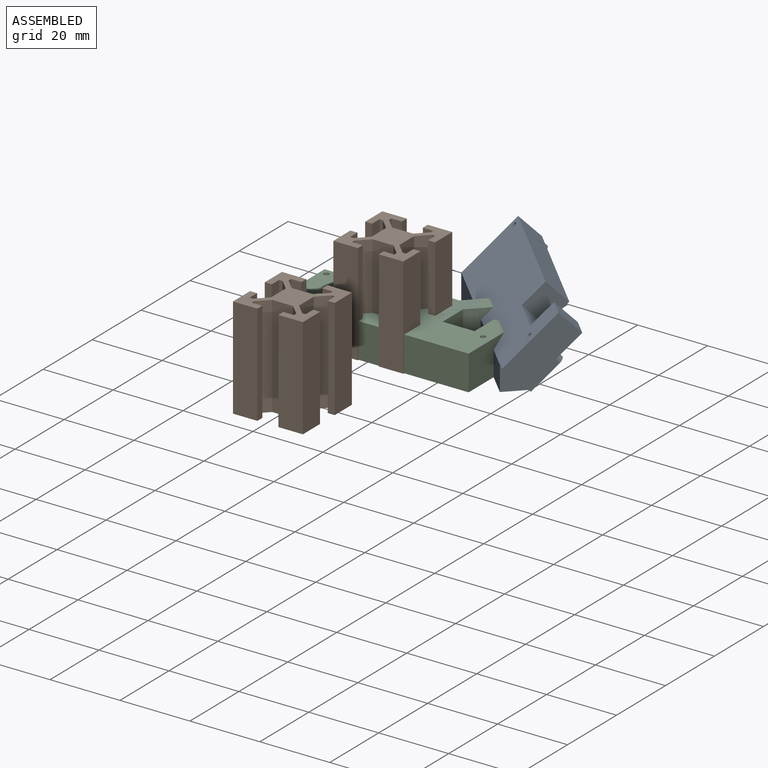
[diagram: assembled view]
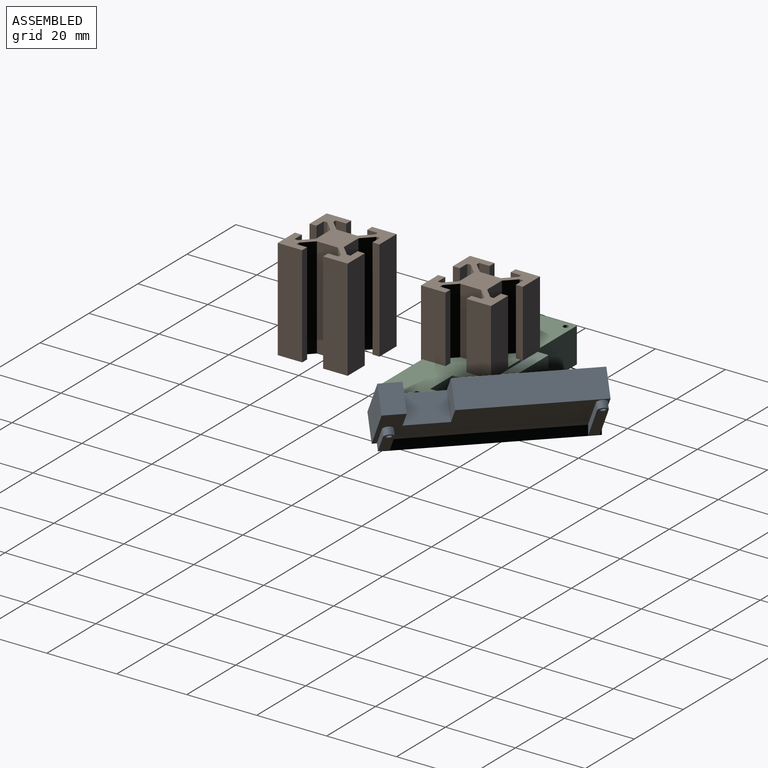
[diagram: assembled view, second angle]
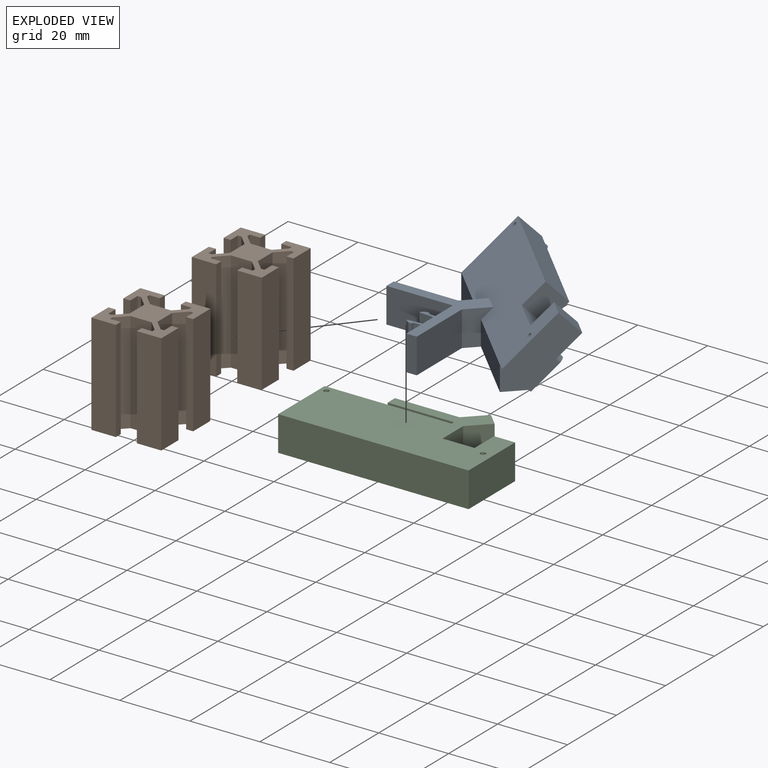
[diagram: exploded view]
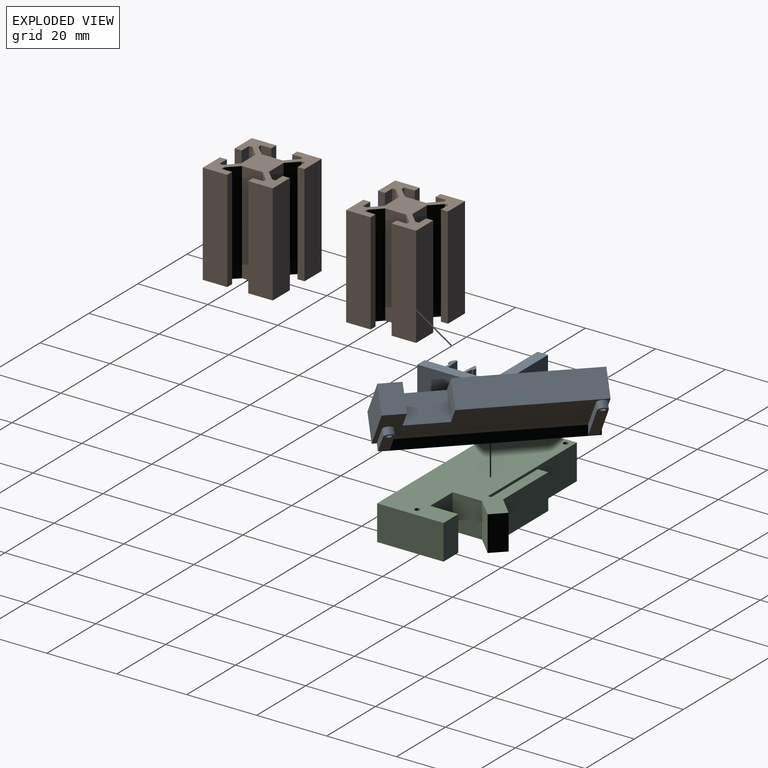
[diagram: exploded view, second angle]
FCSTD DOCUMENT  (FreeCAD 2022.111R28429 (Git))
Label: voroncameramount
License: All rights reserved
LicenseURL: http://en.wikipedia.org/wiki/All_rights_reserved
objects: PartDesign::Body×11, Sketcher::SketchObject×8, PartDesign::Pad×5, App::Part×4, PartDesign::Pocket×3, Image::ImagePlane×1, PartDesign::Mirrored×1, Part::Fuse×1, App::Link×1, PartDesign::FeatureBase×1
note: 49 computed .brp shape members not serialized (recipe doc carries the construction recipe); baked Part::Feature solids carry a one-line shape summary decoded from their .brp

FEATURE [Image::ImagePlane] ImagePlane
  Placement = pos=(0,-0.1,0) rot=(0,0,1;0.008727rad)
  TreeRank = 0
  XSize = 52.3255
  YSize = 19.5
FEATURE [Sketcher::SketchObject] Sketch
  FullyConstrained = true
  MapMode = 5
  Support = -> [XY_Plane001]
  TreeRank = 0
  sketch-geometry (11):
    g0: LineSegment StartX=-26.02 StartY=-9.66 StartZ=0 EndX=25.98 EndY=-9.66 EndZ=0
    g1: LineSegment StartX=25.98 StartY=-9.66 StartZ=0 EndX=25.98 EndY=9.34 EndZ=0
    g2: LineSegment [constr] StartX=25.98 StartY=9.34 StartZ=0 EndX=-26.02 EndY=9.34 EndZ=0
    g3: LineSegment StartX=-26.02 StartY=9.34 StartZ=0 EndX=-26.02 EndY=-9.66 EndZ=0
    g4: LineSegment StartX=-26.02 StartY=9.34 StartZ=0 EndX=8.48 EndY=9.34 EndZ=0
    g5: LineSegment StartX=8.48 StartY=9.34 StartZ=0 EndX=8.48 EndY=1.34 EndZ=0
    g6: LineSegment StartX=8.48 StartY=1.34 StartZ=0 EndX=19.98 EndY=1.34 EndZ=0
    g7: LineSegment StartX=19.98 StartY=1.34 StartZ=0 EndX=19.98 EndY=9.34 EndZ=0
    g8: LineSegment StartX=19.98 StartY=9.34 StartZ=0 EndX=25.98 EndY=9.34 EndZ=0
    g9: Circle CenterX=-24.19 CenterY=7.43 CenterZ=0 NormalX=0 NormalY=0 NormalZ=1 AngleXU=0 Radius=0.75
    g10: Circle CenterX=23.34 CenterY=0 CenterZ=0 NormalX=0 NormalY=0 NormalZ=1 AngleXU=0 Radius=0.75
  constraints (32):
    c: Coincident(g0,g1)
    c: Coincident(g1,g2)
    c: Coincident(g2,g3)
    c: Coincident(g3,g0)
    c: Horizontal(g0)
    c: Horizontal(g2)
    c: Vertical(g1)
    c: Vertical(g3)
    c: DistanceX(g2,g1) = 52
    c: DistanceY(g0,g2) = 19
    c: DistanceY(g-1,g2) = 9.34
    c: DistanceX(g2,g-1) = 26.02
    c: Coincident(g3,g4)
    c: PointOnObject(g4,g2)
    c: Coincident(g4,g5)
    c: Vertical(g5)
    c: Coincident(g5,g6)
    c: Horizontal(g6)
    c: Coincident(g6,g7)
    c: PointOnObject(g7,g2)
    c: Vertical(g7)
    c: Coincident(g8,g7)
    c: Coincident(g8,g1)
    c: DistanceX(g5,g6) = 11.5
    c: DistanceY(g5,g4) = 8
    c: DistanceX(g7,g1) = 6
    c: PointOnObject(g10,g-1)
    c: Equal(g9,g10)
    c: Diameter(g9) = 1.5
    c: DistanceX(g3,g9) = 1.83
    c: DistanceY(g9,g3) = 1.91
    c: DistanceX(g10,g0) = 2.64
FEATURE [PartDesign::Body] Body  label="sketckonlybody"
  AutoGroupSolids = false
  ExportMode = 0
  Group = -> [Sketch]
  Origin = -> Origin001
  TreeRank = 0
  _ExportChildren = -> [Sketch]
  _GroupVersion = 1
FEATURE [Sketcher::SketchObject] Sketch003
  FullyConstrained = false
  MapMode = 5
  TreeRank = 0
  sketch-geometry (26):
    g0: LineSegment [constr] StartX=10 StartY=-10 StartZ=0 EndX=-10 EndY=-10 EndZ=0
    g1: LineSegment StartX=-10 StartY=3 StartZ=0 EndX=-10 EndY=10 EndZ=0
    g2: LineSegment StartX=-10 StartY=10 StartZ=0 EndX=-3 EndY=10 EndZ=0
    g3: LineSegment StartX=-3 StartY=10 StartZ=0 EndX=-3 EndY=8 EndZ=0
    g4: LineSegment StartX=-3 StartY=8 StartZ=0 EndX=-6 EndY=8 EndZ=0
    g5: LineSegment StartX=-10 StartY=3 StartZ=0 EndX=-8 EndY=3 EndZ=0
    g6: LineSegment StartX=-8 StartY=3 StartZ=0 EndX=-8 EndY=6 EndZ=0
    g7: LineSegment StartX=-6 StartY=8 StartZ=0 EndX=-6 EndY=7 EndZ=0
    g8: LineSegment StartX=-6 StartY=7 StartZ=0 EndX=-3 EndY=4 EndZ=0
    g9: LineSegment StartX=-8 StartY=6 StartZ=0 EndX=-7 EndY=6 EndZ=0
    g10: LineSegment StartX=-7 StartY=6 StartZ=0 EndX=-4 EndY=3 EndZ=0
    g11: LineSegment StartX=-4 StartY=3 StartZ=0 EndX=-4 EndY=0 EndZ=0
    g12: LineSegment StartX=-3 StartY=4 StartZ=0 EndX=3 EndY=4 EndZ=0
    g13: LineSegment StartX=3 StartY=4 StartZ=0 EndX=6 EndY=7 EndZ=0
    g14: LineSegment StartX=6 StartY=7 StartZ=0 EndX=6 EndY=8 EndZ=0
    g15: LineSegment StartX=6 StartY=8 StartZ=0 EndX=3 EndY=8 EndZ=0
    g16: LineSegment StartX=3 StartY=8 StartZ=0 EndX=3 EndY=10 EndZ=0
    g17: LineSegment StartX=3 StartY=10 StartZ=0 EndX=10 EndY=10 EndZ=0
    g18: LineSegment StartX=10 StartY=10 StartZ=0 EndX=10 EndY=3 EndZ=0
    g19: LineSegment StartX=10 StartY=3 StartZ=0 EndX=8 EndY=3 EndZ=0
    g20: LineSegment StartX=8 StartY=3 StartZ=0 EndX=8 EndY=6 EndZ=0
    g21: LineSegment StartX=8 StartY=6 StartZ=0 EndX=7 EndY=6 EndZ=0
    g22: LineSegment StartX=7 StartY=6 StartZ=0 EndX=4 EndY=3 EndZ=0
    g23: LineSegment StartX=4 StartY=3 StartZ=0 EndX=4 EndY=0 EndZ=0
    g24: LineSegment StartX=-4 StartY=0 StartZ=0 EndX=4 EndY=0 EndZ=0
    g25: LineSegment [constr] StartX=-3 StartY=10 StartZ=0 EndX=3 EndY=10 EndZ=0
  constraints (75):
    c: Symmetric(g0,g0,g-2)
    c: Coincident(g1,g2)
    c: Horizontal(g2)
    c: Coincident(g2,g3)
    c: Coincident(g3,g4)
    c: Horizontal(g4)
    c: Coincident(g1,g5)
    c: Coincident(g5,g6)
    c: Coincident(g4,g7)
    c: Coincident(g7,g8)
    c: Coincident(g6,g9)
    c: Coincident(g9,g10)
    c: Coincident(g10,g11)
    c: PointOnObject(g11,g-1)
    c: Vertical(g11)
    c: Horizontal(g5)
    c: Vertical(g6)
    c: Horizontal(g9)
    c: Vertical(g7)
    c: Vertical(g3)
    c: Coincident(g8,g12)
    c: Horizontal(g12)
    c: Coincident(g12,g13)
    c: Coincident(g13,g14)
    c: Vertical(g14)
    c: Coincident(g14,g15)
    c: Horizontal(g15)
    c: Coincident(g15,g16)
    c: Vertical(g16)
    c: Coincident(g16,g17)
    c: Horizontal(g17)
    c: Coincident(g17,g18)
    c: Vertical(g18)
    c: Coincident(g18,g19)
    c: Horizontal(g19)
    c: Coincident(g19,g20)
    c: Vertical(g20)
    c: Coincident(g20,g21)
    c: Horizontal(g21)
    c: Coincident(g21,g22)
    c: Coincident(g22,g23)
    c: PointOnObject(g23,g-1)
    c: Vertical(g23)
    c: Coincident(g24,g11)
    c: Coincident(g24,g23)
    c: Equal(g5,g3)
    c: Equal(g3,g16)
    c: Equal(g16,g19)
    c: Equal(g9,g7)
    c: Equal(g7,g14)
    c: Equal(g14,g21)
    c: Equal(g10,g8)
    c: Equal(g8,g13)
    c: Equal(g13,g22)
    c: Equal(g6,g4)
    c: Equal(g4,g15)
    c: Equal(g15,g20)
    c: Equal(g11,g23)
    c: DistanceY(g-1,g1) = 3
    c: DistanceX(g5) = 2
    c: Coincident(g25,g2)
    c: Coincident(g25,g16)
    c: Horizontal(g25)
    c: DistanceX(g25) = 6
    c: Symmetric(g16,g2,g-2)
    c: Equal(g1,g2)
    c: Equal(g2,g17)
    c: Equal(g17,g18)
    c: DistanceX(g17) = 7
    c: Vertical(g1)
    c: DistanceX(g21) = -1
    c: DistanceY(g-1,g8) = 4
    c: DistanceX(g15) = -3
    c: DistanceX(g12) = 6
    c: DistanceY(g23) = -3
FEATURE [PartDesign::Pad] Pad002  label="Change_me_for_height"
  AllowMultiFace = false
  ClaimChildren = false
  Direction = (1,1,1)
  Fit = 0
  FitJoin = 0
  InnerFit = 0
  InnerFitJoin = 0
  InnerTaperAngle = 0
  InnerTaperAngleRev = 0
  Length = 29
  Length2 = 100
  NewSolid = false
  Profile = -> Sketch003
  Suppress = false
  TreeRank = 0
  Type = 0
  _ProfileBasedVersion = 0
FEATURE [PartDesign::Mirrored] Mirrored
  CopyShape = true
  MirrorPlane = -> Sketch003 [H_Axis]
  NewSolid = false
  OriginalSubs = -> [Pad002]
  Originals = -> [Pad002]
  ParallelTransform = true
  SubTransform = true
  Suppress = false
  TreeRank = 0
FEATURE [Part::Fuse] Fusion
  Base = -> Pad002
  Placement = pos=(0,-41,0) rot=(0,0,1;0rad)
  Tool = -> Mirrored
  TreeRank = 0
FEATURE [Sketcher::SketchObject] Sketch004
  FullyConstrained = true
  MapMode = 5
  Placement = pos=(3,-41,0) rot=(0.57735,-0.57735,-0.57735;2.0944rad)
  Support = -> [Fusion]
  TreeRank = 0
  sketch-geometry (1):
    g0: Circle CenterX=0 CenterY=0 CenterZ=0 NormalX=0 NormalY=0 NormalZ=1 AngleXU=0 Radius=2
  constraints (2):
    c: Coincident(g0,g-1)
    c: Radius(g0) = 2
FEATURE [PartDesign::Pocket] Pocket
  AllowMultiFace = false
  ClaimChildren = false
  Fit = 0
  FitJoin = 0
  InnerFit = 0
  InnerFitJoin = 0
  InnerTaperAngle = 0
  InnerTaperAngleRev = 0
  Length = 5
  Length2 = 100
  NewSolid = false
  Profile = -> Sketch004
  Suppress = false
  TreeRank = 0
  Type = 1
  _ProfileBasedVersion = 0
FEATURE [App::Part] Part001  label="extrusion2020"
  ExportMode = 1
  Group = -> [Sketch003,Sketch004,Mirrored,Pad002,Pocket,Fusion]
  Origin = -> Origin005
  TreeRank = 0
  _ExportChildren = -> [Pocket,Fusion]
  _GroupVersion = 1
FEATURE [App::Link] Link  label="tooth1"
  AutoLinkLabel = false
  AutoPlacement = true
  LinkPlacement = pos=(10.4032,-2.15622,10) rot=(0.999391,0.0349,0;3.14159rad)
  LinkedObject = -> Body004
  Placement = pos=(10.4032,-2.15622,10) rot=(0.999391,0.0349,0;3.14159rad)
  SyncGroupVisibility = false
  TreeRank = 0
  _LinkVersion = 1
FEATURE [Sketcher::SketchObject] Sketch007
  FullyConstrained = true
  MapMode = 5
  Support = -> [XY_Plane002]
  TreeRank = 0
  expr: Constraints[10] = Sketch001.Constraints[10]
  expr: Constraints[22] = Sketch001.Constraints[22]
  expr: Constraints[23] = Sketch001.Constraints[23]
  expr: Constraints[24] = Sketch001.Constraints[24]
  expr: Constraints[27] = Sketch001.Constraints[27]
  expr: Constraints[28] = Sketch001.Constraints[28]
  expr: Constraints[29] = Sketch001.Constraints[29]
  expr: Constraints[30] = Sketch001.Constraints[30]
  expr: Constraints[31] = Sketch001.Constraints[31]
  expr: Constraints[8] = Sketch001.Constraints[8]
  expr: Constraints[9] = Sketch001.Constraints[9]
  sketch-geometry (35):
    g0: LineSegment [constr] StartX=-26.02 StartY=-9.66 StartZ=0 EndX=28.45 EndY=-9.66 EndZ=0
    g1: LineSegment [constr] StartX=28.45 StartY=-9.66 StartZ=0 EndX=28.45 EndY=9.34 EndZ=0
    g2: LineSegment [constr] StartX=28.45 StartY=9.34 StartZ=0 EndX=-26.02 EndY=9.34 EndZ=0
    g3: LineSegment [constr] StartX=-26.02 StartY=9.34 StartZ=0 EndX=-26.02 EndY=-9.66 EndZ=0
    g4: LineSegment [constr] StartX=-26.02 StartY=9.34 StartZ=0 EndX=10.95 EndY=9.34 EndZ=0
    g5: LineSegment [constr] StartX=10.95 StartY=9.34 StartZ=0 EndX=10.95 EndY=1.34 EndZ=0
    g6: LineSegment [constr] StartX=10.95 StartY=1.34 StartZ=0 EndX=22.45 EndY=1.34 EndZ=0
    g7: LineSegment [constr] StartX=22.45 StartY=1.34 StartZ=0 EndX=22.45 EndY=9.34 EndZ=0
    g8: LineSegment [constr] StartX=22.45 StartY=9.34 StartZ=0 EndX=28.45 EndY=9.34 EndZ=0
    g9: Circle [constr] CenterX=-24.19 CenterY=7.43 CenterZ=0 NormalX=0 NormalY=0 NormalZ=1 AngleXU=0 Radius=0.75
    g10: Circle [constr] CenterX=25.81 CenterY=0 CenterZ=0 NormalX=0 NormalY=0 NormalZ=1 AngleXU=0 Radius=0.75
    g11: LineSegment [constr] StartX=-26.02 StartY=9.34 StartZ=0 EndX=28.45 EndY=9.34 EndZ=0
    g12: LineSegment [constr] StartX=28.45 StartY=9.34 StartZ=0 EndX=28.45 EndY=-9.66 EndZ=0
    g13: LineSegment [constr] StartX=28.45 StartY=-9.66 StartZ=0 EndX=-26.02 EndY=-9.66 EndZ=0
    g14: LineSegment StartX=-26.02 StartY=-9.66 StartZ=0 EndX=-26.02 EndY=9.34 EndZ=0
    g15: LineSegment StartX=-26.02 StartY=9.34 StartZ=0 EndX=28.45 EndY=9.34 EndZ=0
    g16: Circle [constr] CenterX=25.81 CenterY=0 CenterZ=0 NormalX=0 NormalY=0 NormalZ=1 AngleXU=0 Radius=1.4
    g17: Circle [constr] CenterX=-24.19 CenterY=7.43 CenterZ=0 NormalX=0 NormalY=0 NormalZ=1 AngleXU=0 Radius=1.4
    g18: LineSegment [constr] StartX=-26.02 StartY=-9.66 StartZ=0 EndX=-26.02 EndY=9.34 EndZ=0
    g19: LineSegment [constr] StartX=-26.02 StartY=9.34 StartZ=0 EndX=28.45 EndY=9.34 EndZ=0
    g20: LineSegment [constr] StartX=28.45 StartY=9.34 StartZ=0 EndX=28.45 EndY=-9.66 EndZ=0
    g21: LineSegment [constr] StartX=28.45 StartY=-9.66 StartZ=0 EndX=27.21 EndY=-9.66 EndZ=0
    g22: LineSegment StartX=27.21 StartY=-9.66 StartZ=0 EndX=27.21 EndY=0 EndZ=0
    g23: LineSegment StartX=24.41 StartY=2e-16 StartZ=0 EndX=24.41 EndY=-9.66 EndZ=0
    g24: LineSegment [constr] StartX=24.41 StartY=-9.66 StartZ=0 EndX=-22.79 EndY=-9.66 EndZ=0
    g25: LineSegment StartX=-22.79 StartY=-9.66 StartZ=0 EndX=-22.79 EndY=7.43 EndZ=0
    g26: LineSegment StartX=-25.59 StartY=7.43 StartZ=0 EndX=-25.59 EndY=-9.66 EndZ=0
    g27: LineSegment [constr] StartX=-25.59 StartY=-9.66 StartZ=0 EndX=-26.02 EndY=-9.66 EndZ=0
    g28: LineSegment [constr] StartX=-26.02 StartY=-9.66 StartZ=0 EndX=-26.02 EndY=9.34 EndZ=0
    g29: ArcOfCircle CenterX=-24.19 CenterY=7.43 CenterZ=0 NormalX=0 NormalY=0 NormalZ=1 AngleXU=0 Radius=1.4 StartAngle=1e-16 EndAngle=3.14159
    g30: ArcOfCircle CenterX=25.81 CenterY=0 CenterZ=0 NormalX=0 NormalY=0 NormalZ=1 AngleXU=0 Radius=1.4 StartAngle=0 EndAngle=3.14159
    g31: LineSegment StartX=-26.02 StartY=-9.66 StartZ=0 EndX=-25.59 EndY=-9.66 EndZ=0
    g32: LineSegment StartX=-22.79 StartY=-9.66 StartZ=0 EndX=24.41 EndY=-9.66 EndZ=0
    g33: LineSegment StartX=27.21 StartY=-9.66 StartZ=0 EndX=28.45 EndY=-9.66 EndZ=0
    g34: LineSegment StartX=28.45 StartY=9.34 StartZ=0 EndX=28.45 EndY=-9.66 EndZ=0
  constraints (88):
    c: Coincident(g0,g1)
    c: Coincident(g1,g2)
    c: Coincident(g2,g3)
    c: Coincident(g3,g0)
    c: Horizontal(g0)
    c: Horizontal(g2)
    c: Vertical(g1)
    c: Vertical(g3)
    c: DistanceY(g0,g2) = 19
    c: DistanceY(g-1,g2) = 9.34
    c: DistanceX(g2,g-1) = 26.02
    c: Coincident(g3,g4)
    c: PointOnObject(g4,g2)
    c: Coincident(g4,g5)
    c: Vertical(g5)
    c: Coincident(g5,g6)
    c: Horizontal(g6)
    c: Coincident(g6,g7)
    c: PointOnObject(g7,g2)
    c: Vertical(g7)
    c: Coincident(g8,g7)
    c: Coincident(g8,g1)
    c: DistanceX(g5,g6) = 11.5
    c: DistanceY(g5,g4) = 8
    c: DistanceX(g7,g1) = 6
    c: PointOnObject(g10,g-1)
    c: Equal(g9,g10)
    c: Diameter(g9) = 1.5
    c: DistanceX(g3,g9) = 1.83
    c: DistanceY(g9,g3) = 1.91
    c: DistanceX(g10,g0) = 2.64
    c: DistanceX(g9,g10) = 50
    c: Coincident(g11,g12)
    c: Coincident(g12,g13)
    c: Coincident(g13,g14)
    c: Coincident(g14,g11)
    c: Horizontal(g13)
    c: Vertical(g12)
    c: Coincident(g11,g2)
    c: Coincident(g11,g15)
    c: Coincident(g16,g10)
    c: Coincident(g17,g9)
    c: Equal(g17,g16)
    c: Diameter(g17) = 2.8
    c: Coincident(g13,g18)
    c: Coincident(g18,g11)
    c: Vertical(g18)
    c: Coincident(g18,g19)
    c: Coincident(g19,g11)
    c: Coincident(g19,g20)
    c: Coincident(g20,g12)
    c: Coincident(g20,g21)
    c: PointOnObject(g21,g0)
    c: Horizontal(g21)
    c: Coincident(g21,g22)
    c: Vertical(g22)
    c: Coincident(g23,g24)
    c: PointOnObject(g24,g0)
    c: Coincident(g24,g25)
    c: Vertical(g25)
    c: PointOnObject(g26,g0)
    c: Vertical(g26)
    c: Coincident(g26,g27)
    c: Coincident(g27,g13)
    c: Coincident(g27,g28)
    c: Coincident(g28,g11)
    c: Vertical(g23)
    c: Coincident(g15,g11)
    c: Tangent(g25,g17) = -1.5708
    c: Coincident(g1,g11)
    c: PointOnObject(g23,g16)
    c: Tangent(g26,g17) = -1.5708
    c: Horizontal(g24)
    c: Coincident(g29,g9)
    c: Coincident(g29,g25)
    c: Coincident(g29,g26)
    c: Tangent(g22,g16)
    c: Tangent(g30,g22) = -1.5708
    c: Tangent(g30,g23) = -1.5708
    c: Coincident(g31,g14)
    c: Coincident(g31,g26)
    c: Coincident(g32,g25)
    c: Coincident(g32,g23)
    c: Coincident(g33,g22)
    c: Coincident(g33,g0)
    c: Tangent(g23,g16,g23) = -1.5708
    c: Coincident(g34,g15)
    c: Coincident(g34,g33)
FEATURE [PartDesign::FeatureBase] BaseFeature
  NewSolid = false
  Suppress = false
  TreeRank = 56
FEATURE [PartDesign::Body] PocketBody
  AutoGroupSolids = false
  BaseFeature = -> Fusion
  ExportMode = 0
  Group = -> [BaseFeature]
  Origin = -> Origin010
  Tip = -> BaseFeature
  TreeRank = 0
  _ExportChildren = -> [BaseFeature]
  _GroupVersion = 1
FEATURE [App::Part] Part002
  ExportMode = 1
  Group = -> [PocketBody]
  Origin = -> Origin009
  TreeRank = 0
  _ExportChildren = -> [PocketBody]
  _GroupVersion = 1
FEATURE [PartDesign::Body] BaseFeatureBody
  AutoGroupSolids = false
  ExportMode = 0
  Group = -> [BaseFeature]
  Origin = -> Origin012
  Tip = -> BaseFeature
  TreeRank = 64
  _ExportChildren = -> [BaseFeature]
  _GroupVersion = 1
FEATURE [Sketcher::SketchObject] Sketch002
  FullyConstrained = true
  MapMode = 5
  Support = -> [XY_Plane012]
  TreeRank = 65
  sketch-geometry (4):
    g0: LineSegment StartX=26 StartY=0 StartZ=0 EndX=-26.05 EndY=0 EndZ=0
    g1: LineSegment StartX=-26.05 StartY=0 StartZ=0 EndX=-26.05 EndY=-7.2 EndZ=0
    g2: LineSegment StartX=-26.05 StartY=-7.2 StartZ=0 EndX=26 EndY=-7.2 EndZ=0
    g3: LineSegment StartX=26 StartY=-7.2 StartZ=0 EndX=26 EndY=0 EndZ=0
  constraints (12):
    c: Coincident(g0,g1)
    c: Coincident(g1,g2)
    c: Coincident(g2,g3)
    c: Coincident(g3,g0)
    c: Horizontal(g0)
    c: Horizontal(g2)
    c: Vertical(g1)
    c: Vertical(g3)
    c: PointOnObject(g0,g-1)
    c: DistanceX(g1,g2) = 52.05
    c: DistanceY(g2,g0) = 7.2
    c: DistanceX(g0,g-1) = 26.05
FEATURE [PartDesign::Pad] Pad001
  ClaimChildren = false
  Direction = (1,1,1)
  Fit = 0
  FitJoin = 0
  InnerFit = 0
  InnerFitJoin = 0
  InnerTaperAngle = 0
  InnerTaperAngleRev = 0
  Length = 7.1
  Length2 = 100
  NewSolid = false
  Profile = -> Sketch002
  Suppress = false
  TreeRank = 66
  Type = 0
  _ProfileBasedVersion = 0
FEATURE [PartDesign::Body] Body002  label="FaceArmJoint"
  AutoGroupSolids = false
  ExportMode = 0
  Group = -> [Sketch002,Pad001]
  Origin = -> Origin003
  Placement = pos=(21.07,18.1411,1e-15) rot=(0,0,-1;0.785398rad)
  Tip = -> Pad001
  TreeRank = 0
  _ExportChildren = -> [Pad001]
  _GroupVersion = 1
FEATURE [PartDesign::Body] Pad001Body
  AutoGroupSolids = false
  ExportMode = 0
  Group = -> [Sketch002,Pad001]
  Origin = -> Origin013
  Tip = -> Pad001
  TreeRank = 74
  _ExportChildren = -> [Pad001]
  _GroupVersion = 1
FEATURE [Sketcher::SketchObject] Sketch005
  FullyConstrained = true
  MapMode = 5
  Support = -> [XY_Plane013]
  TreeRank = 75
  sketch-geometry (7):
    g0: LineSegment StartX=0 StartY=0 StartZ=0 EndX=0 EndY=0.75 EndZ=0
    g1: LineSegment StartX=0 StartY=0.75 StartZ=0 EndX=-2.47 EndY=0.75 EndZ=0
    g2: LineSegment StartX=-2.47 StartY=0.75 StartZ=0 EndX=-2.47 EndY=1.25 EndZ=0
    g3: LineSegment StartX=-2.47 StartY=1.25 StartZ=0 EndX=-3.47 EndY=1.25 EndZ=0
    g4: LineSegment StartX=-3.47 StartY=1.25 StartZ=0 EndX=-4.5 EndY=0.5 EndZ=0
    g5: LineSegment StartX=-4.5 StartY=0.5 StartZ=0 EndX=-4.5 EndY=0 EndZ=0
    g6: LineSegment StartX=-4.5 StartY=0 StartZ=0 EndX=0 EndY=0 EndZ=0
  constraints (20):
    c: Horizontal(g6)
    c: Coincident(g6,g0)
    c: Vertical(g0)
    c: Vertical(g5)
    c: Vertical(g2)
    c: Horizontal(g1)
    c: Coincident(g2,g1)
    c: Coincident(g3,g2)
    c: Coincident(g5,g6)
    c: Coincident(g5,g4)
    c: Coincident(g3,g4)
    c: Coincident(g0,g1)
    c: Horizontal(g3)
    c: Coincident(g-1,g0)
    c: DistanceX(g5,g0) = 4.5
    c: DistanceX(g1,g0) = 2.47
    c: DistanceX(g3,g2) = 1
    c: DistanceY(g0,g0) = 0.75
    c: DistanceY(g1,g2) = 0.5
    c: DistanceY(g5,g4) = 0.5
FEATURE [PartDesign::Pad] Pad003
  ClaimChildren = false
  Direction = (1,1,1)
  Fit = 0
  FitJoin = 0
  InnerFit = 0
  InnerFitJoin = 0
  InnerTaperAngle = 0
  InnerTaperAngleRev = 0
  Length = 10
  Length2 = 100
  NewSolid = false
  Profile = -> Sketch005
  Suppress = false
  TreeRank = 76
  Type = 0
  _ProfileBasedVersion = 0
FEATURE [PartDesign::Body] Body004  label="tooth0"
  AutoGroupSolids = false
  ExportMode = 0
  Group = -> [Sketch005,Pad003]
  Origin = -> Origin006
  Placement = pos=(10.4445,2.16081,0) rot=(0,0,1;6.21337rad)
  Tip = -> Pad003
  TreeRank = 0
  _ExportChildren = -> [Pad003]
  _GroupVersion = 1
FEATURE [PartDesign::Body] Pad003Body
  AutoGroupSolids = false
  ExportMode = 0
  Group = -> [Sketch005,Pad003]
  Origin = -> Origin014
  Tip = -> Pad003
  TreeRank = 84
  _ExportChildren = -> [Pad003]
  _GroupVersion = 1
FEATURE [Sketcher::SketchObject] Sketch006
  FullyConstrained = true
  MapMode = 5
  Support = -> [XY_Plane014]
  TreeRank = 85
  sketch-geometry (13):
    g0: LineSegment StartX=10.29 StartY=-8.71 StartZ=0 EndX=10.29 EndY=10.29 EndZ=0
    g1: LineSegment StartX=-8.68 StartY=10.29 StartZ=0 EndX=-8.68 EndY=13.29 EndZ=0
    g2: LineSegment StartX=-8.68 StartY=13.29 StartZ=0 EndX=9.7695 EndY=13.29 EndZ=0
    g3: LineSegment StartX=9.7695 StartY=13.29 StartZ=0 EndX=15.0728 EndY=18.5933 EndZ=0
    g4: LineSegment StartX=15.0728 StartY=18.5933 StartZ=0 EndX=18.5933 EndY=15.0428 EndZ=0
    g5: LineSegment StartX=18.5933 StartY=15.0428 StartZ=0 EndX=13.29 EndY=9.7395 EndZ=0
    g6: LineSegment StartX=13.29 StartY=9.7395 StartZ=0 EndX=13.29 EndY=-8.71 EndZ=0
    g7: LineSegment StartX=13.29 StartY=-8.71 StartZ=0 EndX=10.29 EndY=-8.71 EndZ=0
    g8: LineSegment StartX=-8.68 StartY=10.29 StartZ=0 EndX=-2.68 EndY=10.29 EndZ=0
    g9: LineSegment StartX=-2.68 StartY=10.29 StartZ=0 EndX=-2.68 EndY=10.29 EndZ=0
    g10: LineSegment StartX=-2.68 StartY=10.29 StartZ=0 EndX=3.1 EndY=10.29 EndZ=0
    g11: LineSegment StartX=3.1 StartY=10.29 StartZ=0 EndX=3.1 EndY=10.29 EndZ=0
    g12: LineSegment StartX=3.1 StartY=10.29 StartZ=0 EndX=10.29 EndY=10.29 EndZ=0
  constraints (39):
    c: Vertical(g0)
    c: Coincident(g1,g2)
    c: Horizontal(g2)
    c: Coincident(g2,g3)
    c: Coincident(g3,g4)
    c: Coincident(g4,g5)
    c: Coincident(g5,g6)
    c: Vertical(g6)
    c: Coincident(g6,g7)
    c: Coincident(g7,g0)
    c: Horizontal(g7)
    c: DistanceY(g0,g0) = 19
    c: Vertical(g1)
    c: Equal(g2,g6)
    c: DistanceX(g0,g6) = 3
    c: Equal(g1,g7)
    c: Angle(g6,g5) = 2.35619
    c: Parallel(g5,g3)
    c: DistanceX(g-1,g0) = 10.29
    c: DistanceY(g-1,g1) = 10.29
    c: Distance(g5) = 7.5
    c: Equal(g5,g3)
    c: Distance(g4) = 5
    c: Coincident(g1,g8)
    c: Horizontal(g8)
    c: Coincident(g8,g9)
    c: Coincident(g9,g10)
    c: Horizontal(g10)
    c: Coincident(g10,g11)
    c: Coincident(g11,g12)
    c: Coincident(g12,g0)
    c: Horizontal(g12)
    c: DistanceX(g1,g8) = 6
    c: DistanceX(g11,g0) = 7.19
    c: DistanceY(g9,g8) = 0
    c: DistanceX(g9,g10) = 5.78
    c: Vertical(g11)
    c: Vertical(g9)
    c: Equal(g11,g9)
FEATURE [PartDesign::Pad] Pad004
  ClaimChildren = false
  Direction = (1,1,1)
  Fit = 0
  FitJoin = 0
  InnerFit = 0
  InnerFitJoin = 0
  InnerTaperAngle = 0
  InnerTaperAngleRev = 0
  Length = 10
  Length2 = 100
  NewSolid = false
  Profile = -> Sketch006
  Suppress = false
  TreeRank = 86
  Type = 0
  _ProfileBasedVersion = 0
FEATURE [PartDesign::Body] Body005  label="extrusionJoint"
  AutoGroupSolids = false
  ExportMode = 0
  Group = -> [Sketch006,Pad004]
  Origin = -> Origin008
  Placement = pos=(-0.2,-0.2,0) rot=(0,0,1;0rad)
  Tip = -> Pad004
  TreeRank = 0
  _ExportChildren = -> [Pad004]
  _GroupVersion = 1
FEATURE [PartDesign::Body] Pad004Body
  AutoGroupSolids = false
  ExportMode = 0
  Group = -> [Sketch006,Pad004]
  Origin = -> Origin015
  Tip = -> Pad004
  TreeRank = 94
  _ExportChildren = -> [Pad004]
  _GroupVersion = 1
FEATURE [Sketcher::SketchObject] Sketch001
  FullyConstrained = true
  MapMode = 5
  Support = -> [XY_Plane015]
  TreeRank = 95
  expr: Constraints[10] = Sketch.Constraints[11]
  expr: Constraints[22] = Sketch.Constraints[23]
  expr: Constraints[23] = Sketch.Constraints[24]
  expr: Constraints[24] = Sketch.Constraints[25]
  expr: Constraints[27] = Sketch.Constraints[28]
  expr: Constraints[28] = Sketch.Constraints[29]
  expr: Constraints[29] = Sketch.Constraints[30]
  expr: Constraints[30] = Sketch.Constraints[31]
  expr: Constraints[8] = Sketch.Constraints[9]
  expr: Constraints[9] = Sketch.Constraints[10]
  sketch-geometry (11):
    g0: LineSegment StartX=-26.02 StartY=-9.66 StartZ=0 EndX=28.45 EndY=-9.66 EndZ=0
    g1: LineSegment StartX=28.45 StartY=-9.66 StartZ=0 EndX=28.45 EndY=9.34 EndZ=0
    g2: LineSegment [constr] StartX=28.45 StartY=9.34 StartZ=0 EndX=-26.02 EndY=9.34 EndZ=0
    g3: LineSegment StartX=-26.02 StartY=9.34 StartZ=0 EndX=-26.02 EndY=-9.66 EndZ=0
    g4: LineSegment StartX=-26.02 StartY=9.34 StartZ=0 EndX=10.95 EndY=9.34 EndZ=0
    g5: LineSegment StartX=10.95 StartY=9.34 StartZ=0 EndX=10.95 EndY=1.34 EndZ=0
    g6: LineSegment StartX=10.95 StartY=1.34 StartZ=0 EndX=22.45 EndY=1.34 EndZ=0
    g7: LineSegment StartX=22.45 StartY=1.34 StartZ=0 EndX=22.45 EndY=9.34 EndZ=0
    g8: LineSegment StartX=22.45 StartY=9.34 StartZ=0 EndX=28.45 EndY=9.34 EndZ=0
    g9: Circle CenterX=-24.19 CenterY=7.43 CenterZ=0 NormalX=0 NormalY=0 NormalZ=1 AngleXU=0 Radius=0.75
    g10: Circle CenterX=25.81 CenterY=0 CenterZ=0 NormalX=0 NormalY=0 NormalZ=1 AngleXU=0 Radius=0.75
  constraints (32):
    c: Coincident(g0,g1)
    c: Coincident(g1,g2)
    c: Coincident(g2,g3)
    c: Coincident(g3,g0)
    c: Horizontal(g0)
    c: Horizontal(g2)
    c: Vertical(g1)
    c: Vertical(g3)
    c: DistanceY(g0,g2) = 19
    c: DistanceY(g-1,g2) = 9.34
    c: DistanceX(g2,g-1) = 26.02
    c: Coincident(g3,g4)
    c: PointOnObject(g4,g2)
    c: Coincident(g4,g5)
    c: Vertical(g5)
    c: Coincident(g5,g6)
    c: Horizontal(g6)
    c: Coincident(g6,g7)
    c: PointOnObject(g7,g2)
    c: Vertical(g7)
    c: Coincident(g8,g7)
    c: Coincident(g8,g1)
    c: DistanceX(g5,g6) = 11.5
    c: DistanceY(g5,g4) = 8
    c: DistanceX(g7,g1) = 6
    c: PointOnObject(g10,g-1)
    c: Equal(g9,g10)
    c: Diameter(g9) = 1.5
    c: DistanceX(g3,g9) = 1.83
    c: DistanceY(g9,g3) = 1.91
    c: DistanceX(g10,g0) = 2.64
    c: DistanceX(g9,g10) = 50
FEATURE [PartDesign::Pad] Pad
  ClaimChildren = false
  Direction = (1,1,1)
  Fit = 0
  FitJoin = 0
  InnerFit = 0
  InnerFitJoin = 0
  InnerTaperAngle = 0
  InnerTaperAngleRev = 0
  Length = 10
  Length2 = 100
  NewSolid = false
  Profile = -> Sketch001
  Suppress = false
  TreeRank = 96
  Type = 0
  _ProfileBasedVersion = 0
FEATURE [PartDesign::Pocket] Pocket001
  BaseFeature = -> Pad
  ClaimChildren = false
  Fit = 0
  FitJoin = 0
  InnerFit = 0
  InnerFitJoin = 0
  InnerTaperAngle = 0
  InnerTaperAngleRev = 0
  Length = 5
  Length2 = 100
  Linearize = true
  NewSolid = false
  Profile = -> Sketch007
  Suppress = false
  TreeRank = 54
  Type = 0
  _ProfileBasedVersion = 1
FEATURE [PartDesign::Pocket] Pocket002
  BaseFeature = -> Pocket001
  ClaimChildren = false
  Fit = 0
  FitJoin = 0
  InnerFit = 0
  InnerFitJoin = 0
  InnerTaperAngle = 0
  InnerTaperAngleRev = 0
  Length = 2
  Length2 = 100
  Linearize = true
  NewSolid = false
  Profile = -> Sketch007
  Reversed = true
  Suppress = false
  TreeRank = 55
  Type = 0
  _ProfileBasedVersion = 1
FEATURE [PartDesign::Body] Body001  label="CameraFace"
  AutoGroupSolids = false
  ExportMode = 0
  Group = -> [Sketch001,Pad,Sketch007,Pocket001,Pocket002]
  Origin = -> Origin002
  Placement = pos=(25.88,22.93,6.87071) rot=(0.678598,-0.281085,-0.678598;1.09606rad)
  Tip = -> Pocket002
  TreeRank = 0
  _ExportChildren = -> [Pad,Pocket001,Pocket002]
  _GroupVersion = 1
FEATURE [App::Part] Part  label="Mount"
  ExportMode = 1
  Group = -> [Body,Body001,Body004,Link,Body005,Body002]
  Origin = -> Origin
  TreeRank = 0
  _ExportChildren = -> [Body,Body001,Body004,Link,Body005,Body002]
  _GroupVersion = 1
FEATURE [PartDesign::Body] PadBody
  AutoGroupSolids = false
  ExportMode = 0
  Group = -> [Sketch001,Pad]
  Origin = -> Origin016
  Tip = -> Pad
  TreeRank = 104
  _ExportChildren = -> [Pad]
  _GroupVersion = 1
FEATURE [App::Part] Part003  label="Part"
  ExportMode = 1
  Group = -> [BaseFeatureBody,Pad001Body,Pad003Body,Pad004Body,PadBody]
  Origin = -> Origin011
  TreeRank = 106
  _ExportChildren = -> [BaseFeatureBody,Pad001Body,Pad003Body,Pad004Body,PadBody]
  _GroupVersion = 1
